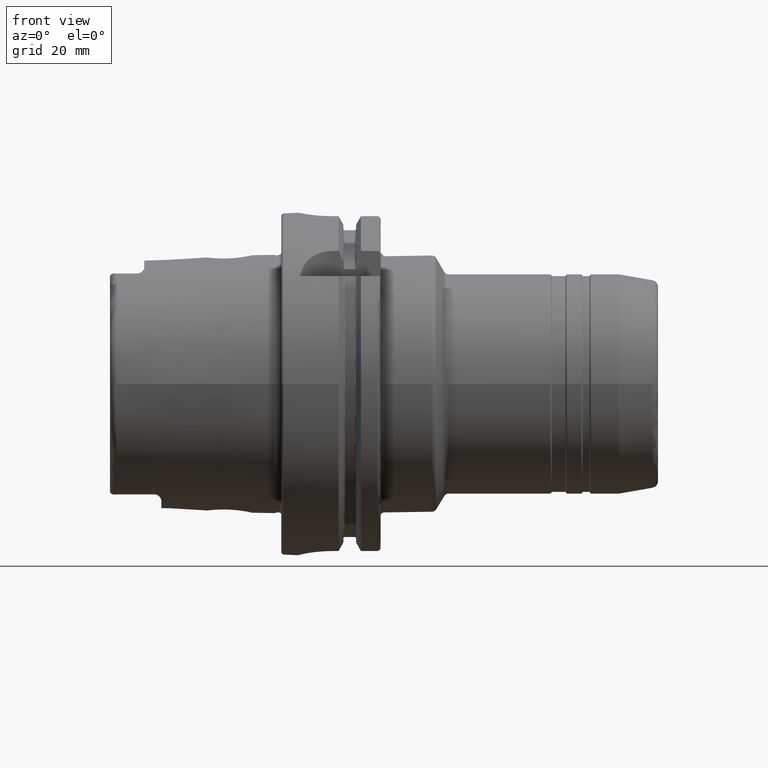
[diagram: clean part render]
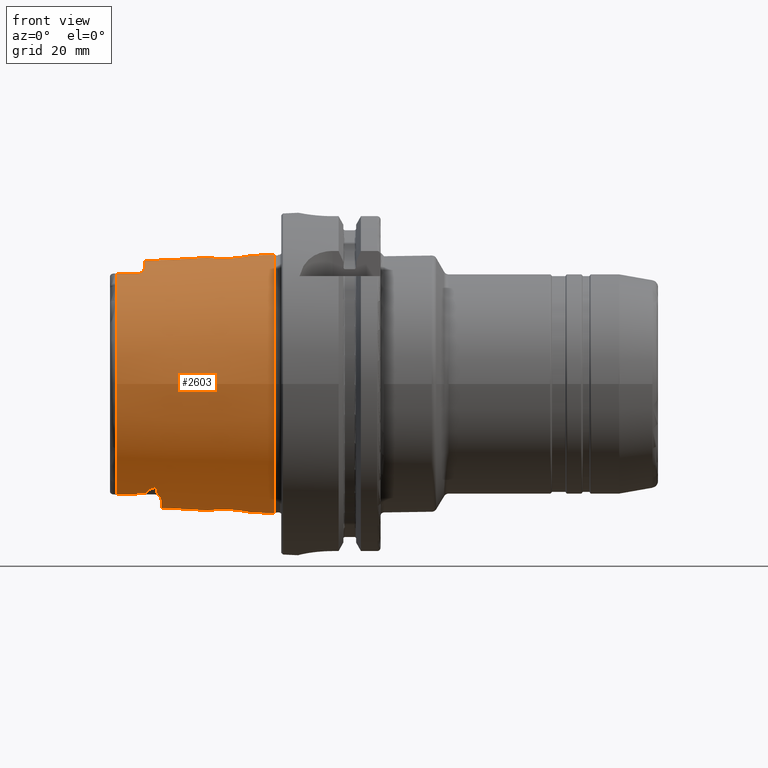
[diagram: same view with one face highlighted and labeled with its STEP entity id]
A machine part, front view. The second image highlights one B-rep face of the part: STEP entity #2603.
In plain terms, the highlighted conical surface has half-angle 2.868 deg.
Its self-contained STEP definition (entity closure, byte-faithful):
#15=(
BOUNDED_CURVE()
B_SPLINE_CURVE(2,(#4581,#4582,#4583),.UNSPECIFIED.,.F.,.F.)
B_SPLINE_CURVE_WITH_KNOTS((3,3),(0.584552731684763,1.01274112792473),
 .UNSPECIFIED.)
CURVE()
GEOMETRIC_REPRESENTATION_ITEM()
RATIONAL_B_SPLINE_CURVE((1.00299496728687,1.00299496728687,1.00138797244737))
REPRESENTATION_ITEM('')
);
#16=(
BOUNDED_CURVE()
B_SPLINE_CURVE(2,(#4650,#4651,#4652),.UNSPECIFIED.,.F.,.F.)
B_SPLINE_CURVE_WITH_KNOTS((3,3),(0.156364335444822,0.584552731684782),
 .UNSPECIFIED.)
CURVE()
GEOMETRIC_REPRESENTATION_ITEM()
RATIONAL_B_SPLINE_CURVE((1.00138797244738,1.00299496728688,1.00299496728688))
REPRESENTATION_ITEM('')
);
#32=B_SPLINE_CURVE_WITH_KNOTS('',3,(#4260,#4261,#4262,#4263,#4264,#4265,
#4266,#4267,#4268,#4269,#4270,#4271,#4272,#4273,#4274,#4275,#4276,#4277),
 .UNSPECIFIED.,.F.,.F.,(4,2,2,2,2,2,2,2,4),(1.82139636410114,1.83165892733975,
1.84192149057836,1.86244661705558,1.93660019990987,2.01075378276416,2.21475865094393,
2.41876351912369,2.7012608097453),.UNSPECIFIED.);
#33=B_SPLINE_CURVE_WITH_KNOTS('',3,(#4302,#4303,#4304,#4305,#4306,#4307,
#4308,#4309,#4310,#4311,#4312,#4313,#4314,#4315,#4316,#4317,#4318,#4319),
 .UNSPECIFIED.,.F.,.F.,(4,2,2,2,2,2,2,2,4),(0.941531918456969,1.22402920907858,
1.42803407725834,1.6320389454381,1.70619252829239,1.78034611114668,1.80087123762391,
1.81113380086252,1.82139636410113),.UNSPECIFIED.);
#36=B_SPLINE_CURVE_WITH_KNOTS('',3,(#4370,#4371,#4372,#4373,#4374,#4375,
#4376,#4377),.UNSPECIFIED.,.F.,.F.,(4,2,2,4),(2.11861414458057,2.2150675983984,
2.41910198133518,2.70152248778045),.UNSPECIFIED.);
#37=B_SPLINE_CURVE_WITH_KNOTS('',3,(#4394,#4395,#4396,#4397,#4398,#4399,
#4400,#4401),.UNSPECIFIED.,.F.,.F.,(4,2,2,4),(0.941785791175404,1.22420629762067,
1.42824068055745,1.52469413437528),.UNSPECIFIED.);
#41=B_SPLINE_CURVE_WITH_KNOTS('',3,(#4548,#4549,#4550,#4551,#4552,#4553,
#4554,#4555,#4556,#4557,#4558,#4559,#4560,#4561,#4562,#4563,#4564,#4565,
#4566,#4567,#4568,#4569,#4570,#4571),.UNSPECIFIED.,.T.,.F.,(4,1,1,1,1,1,
1,1,1,1,1,1,1,1,1,1,1,1,1,1,1,4),(-3.62526060553391,-3.36631341942435,-3.23683982636957,
-3.10736623331478,-2.91315584373261,-2.84841904720522,-2.58947186109565,
-2.41684040368928,-2.2442089462829,-2.07157748887652,-1.89894603147015,
-1.72631457406377,-1.55368311665739,-1.42420952360261,-1.29473593054783,
-1.16526233749304,-1.03578874443826,-0.776841558328696,-0.517894372219131,
-0.388420779164348,-0.258947186109565,0.),.UNSPECIFIED.);
#42=B_SPLINE_CURVE_WITH_KNOTS('',3,(#4585,#4586,#4587,#4588,#4589,#4590,
#4591,#4592,#4593,#4594,#4595,#4596,#4597,#4598,#4599,#4600,#4601,#4602),
 .UNSPECIFIED.,.F.,.F.,(4,2,2,2,2,2,2,2,4),(0.,0.135304265390776,0.202956398086165,
0.270608530781553,0.285985760505599,0.293674375367623,0.301362990229646,
0.309065814809453,0.312240543595572),.UNSPECIFIED.);
#43=B_SPLINE_CURVE_WITH_KNOTS('',3,(#4604,#4605,#4606,#4607,#4608,#4609,
#4610,#4611,#4612,#4613),.UNSPECIFIED.,.F.,.F.,(4,2,2,2,4),(0.355882377061024,
0.475337474766741,0.814409309765131,0.916871755852837,0.96838361555764),
 .UNSPECIFIED.);
#44=B_SPLINE_CURVE_WITH_KNOTS('',3,(#4617,#4618,#4619,#4620,#4621,#4622,
#4623,#4624,#4625,#4626,#4627,#4628,#4629,#4630),.UNSPECIFIED.,.F.,.F.,
(4,2,2,2,2,2,4),(0.968383615555967,0.974150710871355,1.03435732628962,1.16414359525928,
1.35274565404034,1.53834753535542,1.54014497255958),.UNSPECIFIED.);
#45=B_SPLINE_CURVE_WITH_KNOTS('',3,(#4632,#4633,#4634,#4635,#4636,#4637,
#4638,#4639,#4640,#4641,#4642,#4643,#4644,#4645,#4646,#4647,#4648,#4649),
 .UNSPECIFIED.,.F.,.F.,(4,2,2,2,2,2,2,2,4),(0.892798921569994,0.895973650356143,
0.90367647493595,0.911365089797973,0.919053704659997,0.934430934384044,
1.00208306707943,1.06973519977482,1.2050394651656),.UNSPECIFIED.);
#46=B_SPLINE_CURVE_WITH_KNOTS('',3,(#4655,#4656,#4657,#4658,#4659,#4660,
#4661,#4662,#4663,#4664,#4665,#4666,#4667,#4668,#4669,#4670),
 .UNSPECIFIED.,.F.,.F.,(4,2,2,2,2,2,2,4),(0.951925610593878,1.05814966490865,
1.29620724180457,1.38654842311884,1.45440735886397,1.51777192589664,1.5739379106757,
1.5771381713645),.UNSPECIFIED.);
#47=B_SPLINE_CURVE_WITH_KNOTS('',3,(#4673,#4674,#4675,#4676,#4677,#4678,
#4679,#4680,#4681,#4682,#4683,#4684,#4685,#4686),.UNSPECIFIED.,.F.,.F.,
(4,2,2,2,2,2,4),(0.58599893881899,0.631178615969429,0.682399631951053,0.741327952008913,
0.839467365471938,1.06407790070645,1.25314135766173),.UNSPECIFIED.);
#48=B_SPLINE_CURVE_WITH_KNOTS('',3,(#4689,#4690,#4691,#4692,#4693,#4694,
#4695,#4696,#4697,#4698,#4699,#4700,#4701,#4702,#4703,#4704,#4705,#4706,
#4707,#4708,#4709,#4710,#4711,#4712,#4713,#4714),.UNSPECIFIED.,.T.,.F.,
(4,1,1,1,1,1,1,1,1,1,1,1,1,1,1,1,1,1,1,1,1,1,1,4),(-3.62526060553391,-3.36631341942435,
-3.23683982636957,-3.13973463157848,-3.10736623331478,-2.84841904720522,
-2.58947186109565,-2.41684040368928,-2.2442089462829,-2.2010510819313,-2.07157748887652,
-1.89894603147015,-1.72631457406377,-1.55368311665739,-1.42420952360261,
-1.29473593054783,-1.16526233749304,-1.03578874443826,-0.776841558328696,
-0.712104761801304,-0.51789437221913,-0.388420779164348,-0.258947186109565,
0.),.UNSPECIFIED.);
#137=FACE_BOUND('',#620,.T.);
#138=FACE_BOUND('',#621,.T.);
#230=LINE('',#4578,#345);
#345=VECTOR('',#3488,36.7524901081155);
#419=CONICAL_SURFACE('',#2884,36.7524901081155,0.0500583457465976);
#479=FACE_OUTER_BOUND('',#619,.T.);
#619=EDGE_LOOP('',(#1988,#1989,#1990,#1991,#1992,#1993,#1994,#1995,#1996,
#1997,#1998,#1999,#2000,#2001,#2002,#2003,#2004,#2005,#2006,#2007,#2008));
#620=EDGE_LOOP('',(#2009));
#621=EDGE_LOOP('',(#2010));
#833=CIRCLE('',#2885,37.9073016032064);
#834=CIRCLE('',#2886,37.9073016032064);
#835=CIRCLE('',#2887,35.5976786130245);
#836=CIRCLE('',#2888,36.25399498998);
#837=CIRCLE('',#2889,35.5976786130245);
#838=CIRCLE('',#2890,36.003493987976);
#839=CIRCLE('',#2891,35.5976786130245);
#1059=VERTEX_POINT('',#4246);
#1060=VERTEX_POINT('',#4259);
#1070=VERTEX_POINT('',#4299);
#1071=VERTEX_POINT('',#4301);
#1081=VERTEX_POINT('',#4356);
#1082=VERTEX_POINT('',#4369);
#1088=VERTEX_POINT('',#4391);
#1089=VERTEX_POINT('',#4393);
#1092=VERTEX_POINT('',#4516);
#1095=VERTEX_POINT('',#4573);
#1096=VERTEX_POINT('',#4574);
#1097=VERTEX_POINT('',#4577);
#1098=VERTEX_POINT('',#4580);
#1099=VERTEX_POINT('',#4584);
#1100=VERTEX_POINT('',#4603);
#1101=VERTEX_POINT('',#4614);
#1102=VERTEX_POINT('',#4616);
#1103=VERTEX_POINT('',#4631);
#1104=VERTEX_POINT('',#4654);
#1105=VERTEX_POINT('',#4671);
#1106=VERTEX_POINT('',#4688);
#1387=EDGE_CURVE('',#1060,#1059,#32,.T.);
#1399=EDGE_CURVE('',#1071,#1070,#33,.T.);
#1413=EDGE_CURVE('',#1082,#1081,#36,.T.);
#1421=EDGE_CURVE('',#1089,#1088,#37,.T.);
#1429=EDGE_CURVE('',#1092,#1092,#41,.T.);
#1430=EDGE_CURVE('',#1095,#1096,#833,.T.);
#1431=EDGE_CURVE('',#1096,#1095,#834,.T.);
#1432=EDGE_CURVE('',#1096,#1097,#230,.T.);
#1433=EDGE_CURVE('',#1097,#1071,#835,.T.);
#1434=EDGE_CURVE('',#1070,#1098,#15,.T.);
#1435=EDGE_CURVE('',#1099,#1098,#42,.T.);
#1436=EDGE_CURVE('',#1100,#1099,#43,.T.);
#1437=EDGE_CURVE('',#1100,#1101,#836,.T.);
#1438=EDGE_CURVE('',#1102,#1101,#44,.T.);
#1439=EDGE_CURVE('',#1103,#1102,#45,.T.);
#1440=EDGE_CURVE('',#1103,#1060,#16,.T.);
#1441=EDGE_CURVE('',#1059,#1089,#837,.T.);
#1442=EDGE_CURVE('',#1104,#1088,#46,.T.);
#1443=EDGE_CURVE('',#1104,#1105,#838,.T.);
#1444=EDGE_CURVE('',#1082,#1105,#47,.T.);
#1445=EDGE_CURVE('',#1081,#1097,#839,.T.);
#1446=EDGE_CURVE('',#1106,#1106,#48,.T.);
#1988=ORIENTED_EDGE('',*,*,#1430,.F.);
#1989=ORIENTED_EDGE('',*,*,#1431,.F.);
#1990=ORIENTED_EDGE('',*,*,#1432,.T.);
#1991=ORIENTED_EDGE('',*,*,#1433,.T.);
#1992=ORIENTED_EDGE('',*,*,#1399,.T.);
#1993=ORIENTED_EDGE('',*,*,#1434,.T.);
#1994=ORIENTED_EDGE('',*,*,#1435,.F.);
#1995=ORIENTED_EDGE('',*,*,#1436,.F.);
#1996=ORIENTED_EDGE('',*,*,#1437,.T.);
#1997=ORIENTED_EDGE('',*,*,#1438,.F.);
#1998=ORIENTED_EDGE('',*,*,#1439,.F.);
#1999=ORIENTED_EDGE('',*,*,#1440,.T.);
#2000=ORIENTED_EDGE('',*,*,#1387,.T.);
#2001=ORIENTED_EDGE('',*,*,#1441,.T.);
#2002=ORIENTED_EDGE('',*,*,#1421,.T.);
#2003=ORIENTED_EDGE('',*,*,#1442,.F.);
#2004=ORIENTED_EDGE('',*,*,#1443,.T.);
#2005=ORIENTED_EDGE('',*,*,#1444,.F.);
#2006=ORIENTED_EDGE('',*,*,#1413,.T.);
#2007=ORIENTED_EDGE('',*,*,#1445,.T.);
#2008=ORIENTED_EDGE('',*,*,#1432,.F.);
#2009=ORIENTED_EDGE('',*,*,#1446,.F.);
#2010=ORIENTED_EDGE('',*,*,#1429,.F.);
#2603=ADVANCED_FACE('',(#479,#137,#138),#419,.T.);
#2884=AXIS2_PLACEMENT_3D('',#4572,#3482,#3483);
#2885=AXIS2_PLACEMENT_3D('',#4575,#3484,#3485);
#2886=AXIS2_PLACEMENT_3D('',#4576,#3486,#3487);
#2887=AXIS2_PLACEMENT_3D('',#4579,#3489,#3490);
#2888=AXIS2_PLACEMENT_3D('',#4615,#3491,#3492);
#2889=AXIS2_PLACEMENT_3D('',#4653,#3493,#3494);
#2890=AXIS2_PLACEMENT_3D('',#4672,#3495,#3496);
#2891=AXIS2_PLACEMENT_3D('',#4687,#3497,#3498);
#3482=DIRECTION('center_axis',(1.,0.,0.));
#3483=DIRECTION('ref_axis',(0.,1.,0.));
#3484=DIRECTION('center_axis',(1.,0.,0.));
#3485=DIRECTION('ref_axis',(0.,0.,-1.));
#3486=DIRECTION('center_axis',(1.,0.,0.));
#3487=DIRECTION('ref_axis',(0.,0.,-1.));
#3488=DIRECTION('',(-0.998747342623037,0.0500374420151823,6.12781932014143E-18));
#3489=DIRECTION('center_axis',(1.,0.,0.));
#3490=DIRECTION('ref_axis',(0.,0.,-1.));
#3491=DIRECTION('center_axis',(1.,0.,0.));
#3492=DIRECTION('ref_axis',(0.,1.,0.));
#3493=DIRECTION('center_axis',(1.,0.,0.));
#3494=DIRECTION('ref_axis',(0.,0.,-1.));
#3495=DIRECTION('center_axis',(1.,0.,0.));
#3496=DIRECTION('ref_axis',(0.,1.,0.));
#3497=DIRECTION('center_axis',(1.,0.,0.));
#3498=DIRECTION('ref_axis',(0.,0.,-1.));
#4246=CARTESIAN_POINT('',(-48.1000748840304,15.0787152148571,-32.2463497175327));
#4259=CARTESIAN_POINT('',(-39.3086860506441,17.2220784153651,-31.6567015600095));
#4260=CARTESIAN_POINT('Ctrl Pts',(-39.3086860506439,17.2220784153651,-31.6567015600096));
#4261=CARTESIAN_POINT('Ctrl Pts',(-39.3086860506439,17.1920288621925,-31.6730493074242));
#4262=CARTESIAN_POINT('Ctrl Pts',(-39.3149778656361,17.1622985367362,-31.6888083298259));
#4263=CARTESIAN_POINT('Ctrl Pts',(-39.3379356243704,17.1047575471073,-31.7185977246152));
#4264=CARTESIAN_POINT('Ctrl Pts',(-39.3545931085757,17.0769444761517,-31.7326299669));
#4265=CARTESIAN_POINT('Ctrl Pts',(-39.41492287308,16.9977687004959,-31.7717242618145));
#4266=CARTESIAN_POINT('Ctrl Pts',(-39.4690330405114,16.9505386197656,-31.7938497879436));
#4267=CARTESIAN_POINT('Ctrl Pts',(-39.7137538085318,16.7691556019457,-31.8763882092881));
#4268=CARTESIAN_POINT('Ctrl Pts',(-39.9557031082111,16.6668123685081,-31.9161154581445));
#4269=CARTESIAN_POINT('Ctrl Pts',(-40.4538120390228,16.4807891402054,-31.9844991546727));
#4270=CARTESIAN_POINT('Ctrl Pts',(-40.7121103138056,16.4018770942044,-32.0104206666339));
#4271=CARTESIAN_POINT('Ctrl Pts',(-41.6015350915672,16.1516844838416,-32.0879931345296));
#4272=CARTESIAN_POINT('Ctrl Pts',(-42.2774968259687,16.0065639510366,-32.1225120780024));
#4273=CARTESIAN_POINT('Ctrl Pts',(-43.6583569770469,15.7387900082285,-32.1775602969968));
#4274=CARTESIAN_POINT('Ctrl Pts',(-44.3638273319757,15.6187903492069,-32.19660809961));
#4275=CARTESIAN_POINT('Ctrl Pts',(-46.0708874643597,15.3507400024476,-32.2307282620297));
#4276=CARTESIAN_POINT('Ctrl Pts',(-47.0815953489825,15.2100460868363,-32.2412671998384));
#4277=CARTESIAN_POINT('Ctrl Pts',(-48.1000748840303,15.0787152148571,-32.2463497175327));
#4299=CARTESIAN_POINT('',(-39.3086860506441,-17.2220784153651,-31.6567015600095));
#4301=CARTESIAN_POINT('',(-48.1000748840304,-15.0787152148571,-32.2463497175327));
#4302=CARTESIAN_POINT('Ctrl Pts',(-48.1000748840304,-15.0787152148571,-32.2463497175327));
#4303=CARTESIAN_POINT('Ctrl Pts',(-47.0815953489825,-15.2100460868363,-32.2412671998384));
#4304=CARTESIAN_POINT('Ctrl Pts',(-46.0708874643597,-15.3507400024476,-32.2307282620297));
#4305=CARTESIAN_POINT('Ctrl Pts',(-44.3638273319757,-15.6187903492069,-32.19660809961));
#4306=CARTESIAN_POINT('Ctrl Pts',(-43.6583569770469,-15.7387900082285,-32.1775602969968));
#4307=CARTESIAN_POINT('Ctrl Pts',(-42.2774968259687,-16.0065639510366,-32.1225120780024));
#4308=CARTESIAN_POINT('Ctrl Pts',(-41.6015350915672,-16.1516844838416,-32.0879931345296));
#4309=CARTESIAN_POINT('Ctrl Pts',(-40.7121103138057,-16.4018770942044,-32.0104206666339));
#4310=CARTESIAN_POINT('Ctrl Pts',(-40.4538120390228,-16.4807891402054,-31.9844991546726));
#4311=CARTESIAN_POINT('Ctrl Pts',(-39.9557031082111,-16.6668123685081,-31.9161154581445));
#4312=CARTESIAN_POINT('Ctrl Pts',(-39.7137538085319,-16.7691556019457,-31.8763882092881));
#4313=CARTESIAN_POINT('Ctrl Pts',(-39.4690330405114,-16.9505386197656,-31.7938497879436));
#4314=CARTESIAN_POINT('Ctrl Pts',(-39.41492287308,-16.9977687004959,-31.7717242618145));
#4315=CARTESIAN_POINT('Ctrl Pts',(-39.3545931085758,-17.0769444761517,-31.7326299669));
#4316=CARTESIAN_POINT('Ctrl Pts',(-39.3379356243703,-17.1047575471073,-31.7185977246152));
#4317=CARTESIAN_POINT('Ctrl Pts',(-39.314977865636,-17.1622985367361,-31.688808329826));
#4318=CARTESIAN_POINT('Ctrl Pts',(-39.3086860506439,-17.1920288621925,-31.6730493074242));
#4319=CARTESIAN_POINT('Ctrl Pts',(-39.3086860506439,-17.2220784153651,-31.6567015600096));
#4356=CARTESIAN_POINT('',(-48.1000748840304,-15.0787152148571,32.2463497175327));
#4369=CARTESIAN_POINT('',(-42.0000000002536,-16.0736316900317,32.1042809403702));
#4370=CARTESIAN_POINT('Ctrl Pts',(-42.0000000002663,-16.0736316900856,32.1042809403568));
#4371=CARTESIAN_POINT('Ctrl Pts',(-42.3189705746531,-16.0023328339441,32.122106579912));
#4372=CARTESIAN_POINT('Ctrl Pts',(-42.6420078541405,-15.9358744877955,32.1370456038288));
#4373=CARTESIAN_POINT('Ctrl Pts',(-43.6589764923173,-15.7386786248219,32.177580265585));
#4374=CARTESIAN_POINT('Ctrl Pts',(-44.364550975751,-15.6186692080222,32.1966265955614));
#4375=CARTESIAN_POINT('Ctrl Pts',(-46.0714496280263,-15.3506621075505,32.2307339275334));
#4376=CARTESIAN_POINT('Ctrl Pts',(-47.0818768820559,-15.210009783717,32.2412686047727));
#4377=CARTESIAN_POINT('Ctrl Pts',(-48.1000748840304,-15.0787152148571,32.2463497175327));
#4391=CARTESIAN_POINT('',(-42.0000000002536,16.0736316900317,32.1042809403702));
#4393=CARTESIAN_POINT('',(-48.1000748840304,15.0787152148571,32.2463497175327));
#4394=CARTESIAN_POINT('Ctrl Pts',(-48.1000748840304,15.0787152148571,32.2463497175327));
#4395=CARTESIAN_POINT('Ctrl Pts',(-47.0818768820559,15.210009783717,32.2412686047727));
#4396=CARTESIAN_POINT('Ctrl Pts',(-46.0714496280263,15.3506621075505,32.2307339275334));
#4397=CARTESIAN_POINT('Ctrl Pts',(-44.364550975751,15.6186692080222,32.1966265955614));
#4398=CARTESIAN_POINT('Ctrl Pts',(-43.6589764923172,15.7386786248219,32.177580265585));
#4399=CARTESIAN_POINT('Ctrl Pts',(-42.6420078541405,15.9358744877955,32.1370456038288));
#4400=CARTESIAN_POINT('Ctrl Pts',(-42.3189705746531,16.0023328339441,32.122106579912));
#4401=CARTESIAN_POINT('Ctrl Pts',(-42.0000000002663,16.0736316900856,32.1042809403568));
#4516=CARTESIAN_POINT('',(-15.0482435047104,6.49272743621066,-36.6834276129017));
#4548=CARTESIAN_POINT('Ctrl Pts',(-15.0482435047104,6.49272743621066,-36.6834276129017));
#4549=CARTESIAN_POINT('Ctrl Pts',(-14.1135545674523,6.50026995600844,-36.7296485677624));
#4550=CARTESIAN_POINT('Ctrl Pts',(-12.6125862949105,6.18830817118321,-36.8646717861154));
#4551=CARTESIAN_POINT('Ctrl Pts',(-10.9355263213122,5.13385394303874,-37.1097128714846));
#4552=CARTESIAN_POINT('Ctrl Pts',(-9.77420691042437,3.99872482551772,-37.3124990416381));
#4553=CARTESIAN_POINT('Ctrl Pts',(-9.01389114298067,2.6908920183028,-37.4692616165149));
#4554=CARTESIAN_POINT('Ctrl Pts',(-8.45620136187699,0.783918842134784,-37.5909415665212));
#4555=CARTESIAN_POINT('Ctrl Pts',(-8.42050281053454,-1.03174264349175,-37.5987683444945));
#4556=CARTESIAN_POINT('Ctrl Pts',(-9.26297266549275,-3.26583075674904,-37.4147206754643));
#4557=CARTESIAN_POINT('Ctrl Pts',(-10.458492519938,-4.76885929810559,-37.1861403632723));
#4558=CARTESIAN_POINT('Ctrl Pts',(-12.0228887870965,-5.89032438834427,-36.9420532655873));
#4559=CARTESIAN_POINT('Ctrl Pts',(-13.9680532212746,-6.50710199210242,-36.7359370633354));
#4560=CARTESIAN_POINT('Ctrl Pts',(-15.8440764393336,-6.52958618717481,-36.6362816769022));
#4561=CARTESIAN_POINT('Ctrl Pts',(-17.6300730630046,-6.03011079587191,-36.6335589552162));
#4562=CARTESIAN_POINT('Ctrl Pts',(-19.0454046322519,-5.14759442471502,-36.6975665887127));
#4563=CARTESIAN_POINT('Ctrl Pts',(-20.0509032742539,-4.16499804110167,-36.7727593560743));
#4564=CARTESIAN_POINT('Ctrl Pts',(-20.8701749498926,-2.92631384107143,-36.8543936474532));
#4565=CARTESIAN_POINT('Ctrl Pts',(-21.5409373453018,-1.02232892624704,-36.9349482957206));
#4566=CARTESIAN_POINT('Ctrl Pts',(-21.5837880668158,1.35571299008144,-36.9401169281877));
#4567=CARTESIAN_POINT('Ctrl Pts',(-20.4818838939864,3.73437449889082,-36.8075944881395));
#4568=CARTESIAN_POINT('Ctrl Pts',(-19.1568247034836,5.05418616406115,-36.7047525113947));
#4569=CARTESIAN_POINT('Ctrl Pts',(-17.4931824437517,6.14967739850973,-36.6242770442053));
#4570=CARTESIAN_POINT('Ctrl Pts',(-15.9829324419684,6.48518491641288,-36.637206658041));
#4571=CARTESIAN_POINT('Ctrl Pts',(-15.0482435047104,6.49272743621066,-36.6834276129017));
#4572=CARTESIAN_POINT('Origin',(-25.0500374420152,0.,0.));
#4573=CARTESIAN_POINT('',(-2.,37.9073016032064,0.));
#4574=CARTESIAN_POINT('',(-2.,-37.9073016032064,-4.64230555726801E-15));
#4575=CARTESIAN_POINT('Origin',(-2.,0.,0.));
#4576=CARTESIAN_POINT('Origin',(-2.,0.,0.));
#4577=CARTESIAN_POINT('',(-48.1000748840304,-35.5976786130245,-4.35945831705167E-15));
#4578=CARTESIAN_POINT('',(-25.0500374420152,-36.7524901081155,-4.50088193715984E-15));
#4579=CARTESIAN_POINT('Origin',(-48.1000748840304,0.,0.));
#4580=CARTESIAN_POINT('',(-36.9999999999998,-19.7604190654811,-30.275777472314));
#4581=CARTESIAN_POINT('Ctrl Pts',(-39.3086860506441,-17.2220784153651,-31.6567015600095));
#4582=CARTESIAN_POINT('Ctrl Pts',(-39.3086860506441,-18.4892152804039,-30.9673457719047));
#4583=CARTESIAN_POINT('Ctrl Pts',(-37.0000000000089,-19.760419065476,-30.2757774723168));
#4584=CARTESIAN_POINT('',(-36.2297931655992,-17.2957936700592,-31.7922009905656));
#4585=CARTESIAN_POINT('Ctrl Pts',(-36.2297931655991,-17.2957936700592,-31.7922009905656));
#4586=CARTESIAN_POINT('Ctrl Pts',(-36.2297931655991,-17.6919746847632,-31.5766680965597));
#4587=CARTESIAN_POINT('Ctrl Pts',(-36.2521990165892,-18.1190045646745,-31.3326752508756));
#4588=CARTESIAN_POINT('Ctrl Pts',(-36.3408092415002,-18.7314387685111,-30.9624943289716));
#4589=CARTESIAN_POINT('Ctrl Pts',(-36.3790895444364,-18.9299841471613,-30.8391450528654));
#4590=CARTESIAN_POINT('Ctrl Pts',(-36.4852329136377,-19.306843178886,-30.5983353090591));
#4591=CARTESIAN_POINT('Ctrl Pts',(-36.5439103950281,-19.4871821233798,-30.4800880558704));
#4592=CARTESIAN_POINT('Ctrl Pts',(-36.6912326687357,-19.6798076445983,-30.3467082687203));
#4593=CARTESIAN_POINT('Ctrl Pts',(-36.7249701183787,-19.7165113518141,-30.3208469816645));
#4594=CARTESIAN_POINT('Ctrl Pts',(-36.7841864173308,-19.7579943063986,-30.290274608581));
#4595=CARTESIAN_POINT('Ctrl Pts',(-36.8053838947294,-19.7694984454156,-30.2814962901986));
#4596=CARTESIAN_POINT('Ctrl Pts',(-36.8506143317697,-19.7854180725537,-30.2683898183443));
#4597=CARTESIAN_POINT('Ctrl Pts',(-36.8746547533364,-19.7898201350064,-30.264071114845));
#4598=CARTESIAN_POINT('Ctrl Pts',(-36.925895284142,-19.7884151696532,-30.2619225368856));
#4599=CARTESIAN_POINT('Ctrl Pts',(-36.9499861453108,-19.7826799175172,-30.2642318432453));
#4600=CARTESIAN_POINT('Ctrl Pts',(-36.9820207117301,-19.7696848900689,-30.2708039920388));
#4601=CARTESIAN_POINT('Ctrl Pts',(-36.9911306097576,-19.7653027102035,-30.273120641115));
#4602=CARTESIAN_POINT('Ctrl Pts',(-36.9999999999997,-19.760419065481,-30.275777472314));
#4603=CARTESIAN_POINT('',(-35.,-12.7918651267415,-33.9222690767105));
#4604=CARTESIAN_POINT('Ctrl Pts',(-35.,-12.7918651267426,-33.9222690767101));
#4605=CARTESIAN_POINT('Ctrl Pts',(-35.0000000000001,-13.2716695445343,-33.7413379784475));
#4606=CARTESIAN_POINT('Ctrl Pts',(-35.0765460606978,-13.7105867284853,-33.5594062083601));
#4607=CARTESIAN_POINT('Ctrl Pts',(-35.3935172162449,-15.0275145848391,-32.9882321567447));
#4608=CARTESIAN_POINT('Ctrl Pts',(-35.8272793338039,-15.8448282797016,-32.5701705725068));
#4609=CARTESIAN_POINT('Ctrl Pts',(-36.1303536788273,-16.6786905371956,-32.126600714556));
#4610=CARTESIAN_POINT('Ctrl Pts',(-36.1820664850684,-16.8557754437463,-32.030984619072));
#4611=CARTESIAN_POINT('Ctrl Pts',(-36.2225122577352,-17.1184652869411,-31.8886039957027));
#4612=CARTESIAN_POINT('Ctrl Pts',(-36.2297931655992,-17.2061020907562,-31.8409955691488));
#4613=CARTESIAN_POINT('Ctrl Pts',(-36.2297931655992,-17.2957936700592,-31.7922009905656));
#4614=CARTESIAN_POINT('',(-35.,12.7918651267415,-33.9222690767105));
#4615=CARTESIAN_POINT('Origin',(-35.,0.,0.));
#4616=CARTESIAN_POINT('',(-36.2297931655992,17.2957936700592,-31.7922009905656));
#4617=CARTESIAN_POINT('Ctrl Pts',(-36.2297931655992,17.2957936700592,-31.7922009905656));
#4618=CARTESIAN_POINT('Ctrl Pts',(-36.2297931655992,17.2857521011896,-31.7976638681859));
#4619=CARTESIAN_POINT('Ctrl Pts',(-36.2297018732724,17.2756840159163,-31.8031402140989));
#4620=CARTESIAN_POINT('Ctrl Pts',(-36.2275970792751,17.1601682556352,-31.8659616470356));
#4621=CARTESIAN_POINT('Ctrl Pts',(-36.2156218316917,17.0562072347613,-31.922407942335));
#4622=CARTESIAN_POINT('Ctrl Pts',(-36.1505093185127,16.7229293390599,-32.1027521967692));
#4623=CARTESIAN_POINT('Ctrl Pts',(-36.065134056668,16.4848506381079,-32.2308215310631));
#4624=CARTESIAN_POINT('Ctrl Pts',(-35.7984585549742,15.8312737268516,-32.5732245714574));
#4625=CARTESIAN_POINT('Ctrl Pts',(-35.5744019673667,15.3507133777923,-32.8174718312589));
#4626=CARTESIAN_POINT('Ctrl Pts',(-35.1938633470317,14.2651773499191,-33.3242510091415));
#4627=CARTESIAN_POINT('Ctrl Pts',(-35.0037140190077,13.5715015976815,-33.6275053772421));
#4628=CARTESIAN_POINT('Ctrl Pts',(-35.0000176891147,12.8065033311274,-33.9167454576574));
#4629=CARTESIAN_POINT('Ctrl Pts',(-35.,12.7991780985434,-33.9195114030197));
#4630=CARTESIAN_POINT('Ctrl Pts',(-35.,12.7918651267414,-33.9222690767105));
#4631=CARTESIAN_POINT('',(-37.,19.7604190654809,-30.2757774723141));
#4632=CARTESIAN_POINT('Ctrl Pts',(-37.,19.760419065481,-30.2757774723141));
#4633=CARTESIAN_POINT('Ctrl Pts',(-36.9911306097578,19.7653027102035,-30.273120641115));
#4634=CARTESIAN_POINT('Ctrl Pts',(-36.9820207117302,19.769684890069,-30.2708039920388));
#4635=CARTESIAN_POINT('Ctrl Pts',(-36.9499861453108,19.7826799175173,-30.2642318432453));
#4636=CARTESIAN_POINT('Ctrl Pts',(-36.925895284142,19.7884151696532,-30.2619225368856));
#4637=CARTESIAN_POINT('Ctrl Pts',(-36.8746547533364,19.7898201350064,-30.264071114845));
#4638=CARTESIAN_POINT('Ctrl Pts',(-36.8506143317697,19.7854180725537,-30.2683898183443));
#4639=CARTESIAN_POINT('Ctrl Pts',(-36.8053838947294,19.7694984454156,-30.2814962901986));
#4640=CARTESIAN_POINT('Ctrl Pts',(-36.7841864173308,19.7579943063986,-30.290274608581));
#4641=CARTESIAN_POINT('Ctrl Pts',(-36.7249701183787,19.7165113518141,-30.3208469816645));
#4642=CARTESIAN_POINT('Ctrl Pts',(-36.6912326687357,19.6798076445984,-30.3467082687203));
#4643=CARTESIAN_POINT('Ctrl Pts',(-36.5439103950281,19.4871821233798,-30.4800880558704));
#4644=CARTESIAN_POINT('Ctrl Pts',(-36.4852329136378,19.306843178886,-30.5983353090591));
#4645=CARTESIAN_POINT('Ctrl Pts',(-36.3790895444365,18.9299841471613,-30.8391450528654));
#4646=CARTESIAN_POINT('Ctrl Pts',(-36.3408092415002,18.7314387685111,-30.9624943289715));
#4647=CARTESIAN_POINT('Ctrl Pts',(-36.2521990165892,18.1190045646745,-31.3326752508756));
#4648=CARTESIAN_POINT('Ctrl Pts',(-36.2297931655991,17.6919746847632,-31.5766680965597));
#4649=CARTESIAN_POINT('Ctrl Pts',(-36.2297931655991,17.2957936700592,-31.7922009905656));
#4650=CARTESIAN_POINT('Ctrl Pts',(-37.0000000000092,19.7604190654759,-30.2757774723168));
#4651=CARTESIAN_POINT('Ctrl Pts',(-39.3086860506441,18.4892152804039,-30.9673457719048));
#4652=CARTESIAN_POINT('Ctrl Pts',(-39.3086860506441,17.2220784153651,-31.6567015600095));
#4653=CARTESIAN_POINT('Origin',(-48.1000748840304,0.,0.));
#4654=CARTESIAN_POINT('',(-40.,12.4227760464511,33.7923987701664));
#4655=CARTESIAN_POINT('Ctrl Pts',(-40.,12.4227760464511,33.7923987701664));
#4656=CARTESIAN_POINT('Ctrl Pts',(-40.,12.7419527823378,33.6750628824087));
#4657=CARTESIAN_POINT('Ctrl Pts',(-40.0375731646412,13.0776475996579,33.5444889562855));
#4658=CARTESIAN_POINT('Ctrl Pts',(-40.2952030220137,14.204338882917,33.0777059010272));
#4659=CARTESIAN_POINT('Ctrl Pts',(-40.646555500088,14.8752966004784,32.7549341580208));
#4660=CARTESIAN_POINT('Ctrl Pts',(-41.0603895118526,15.4779630836856,32.44836211168));
#4661=CARTESIAN_POINT('Ctrl Pts',(-41.1980205087673,15.6556849566356,32.3552047227428));
#4662=CARTESIAN_POINT('Ctrl Pts',(-41.4545269599315,15.9060673278644,32.2183420240425));
#4663=CARTESIAN_POINT('Ctrl Pts',(-41.5436022580114,15.9688653327575,32.1820824055277));
#4664=CARTESIAN_POINT('Ctrl Pts',(-41.6853529076114,16.0463920787515,32.1355548450209));
#4665=CARTESIAN_POINT('Ctrl Pts',(-41.7512744555391,16.0697812119561,32.1201454390566));
#4666=CARTESIAN_POINT('Ctrl Pts',(-41.8741794719293,16.0889724726195,32.1036488638476));
#4667=CARTESIAN_POINT('Ctrl Pts',(-41.9317167825714,16.0876211043841,32.1011018387604));
#4668=CARTESIAN_POINT('Ctrl Pts',(-41.9933777503431,16.0750788518127,32.1039274012118));
#4669=CARTESIAN_POINT('Ctrl Pts',(-41.9966932024657,16.0743708520026,32.1040961402821));
#4670=CARTESIAN_POINT('Ctrl Pts',(-42.0000000002664,16.0736316900856,32.1042809403568));
#4671=CARTESIAN_POINT('',(-40.,-12.4227760464511,33.7923987701664));
#4672=CARTESIAN_POINT('Origin',(-40.,0.,0.));
#4673=CARTESIAN_POINT('Ctrl Pts',(-42.0000000002664,-16.0736316900856,32.1042809403568));
#4674=CARTESIAN_POINT('Ctrl Pts',(-41.9532981877176,-16.0840708530993,32.1016710140877));
#4675=CARTESIAN_POINT('Ctrl Pts',(-41.9050462288341,-16.0882872456028,32.1022609254704));
#4676=CARTESIAN_POINT('Ctrl Pts',(-41.7973675228035,-16.0800004321419,32.1124461122313));
#4677=CARTESIAN_POINT('Ctrl Pts',(-41.7413360757048,-16.0653619433608,32.1229212478587));
#4678=CARTESIAN_POINT('Ctrl Pts',(-41.6239822044533,-16.0165128109429,32.1538775766807));
#4679=CARTESIAN_POINT('Ctrl Pts',(-41.5522675623989,-15.9755629601737,32.1783316856742));
#4680=CARTESIAN_POINT('Ctrl Pts',(-41.3277927134023,-15.7966592313301,32.2792175155224));
#4681=CARTESIAN_POINT('Ctrl Pts',(-41.1901764677993,-15.6399550711414,32.3632616530429));
#4682=CARTESIAN_POINT('Ctrl Pts',(-40.8198003078492,-15.1566985557665,32.6146257404162));
#4683=CARTESIAN_POINT('Ctrl Pts',(-40.5143326017071,-14.6456107207803,32.868966839454));
#4684=CARTESIAN_POINT('Ctrl Pts',(-40.1039820766269,-13.4955400218785,33.3777943404952));
#4685=CARTESIAN_POINT('Ctrl Pts',(-40.,-12.9546784960247,33.5968605648276));
#4686=CARTESIAN_POINT('Ctrl Pts',(-40.,-12.422776046451,33.7923987701664));
#4687=CARTESIAN_POINT('Origin',(-48.1000748840304,0.,0.));
#4688=CARTESIAN_POINT('',(-15.0482435047104,6.49272743621066,36.6834276129017));
#4689=CARTESIAN_POINT('Ctrl Pts',(-15.0482435047104,6.49272743621066,36.6834276129017));
#4690=CARTESIAN_POINT('Ctrl Pts',(-15.9829324419684,6.48518491641288,36.637206658041));
#4691=CARTESIAN_POINT('Ctrl Pts',(-17.4866023410943,6.1492077495217,36.6235790675961));
#4692=CARTESIAN_POINT('Ctrl Pts',(-19.0577948349359,5.12534251951808,36.7000400389206));
#4693=CARTESIAN_POINT('Ctrl Pts',(-19.7285341214944,4.47535633862254,36.7489785200356));
#4694=CARTESIAN_POINT('Ctrl Pts',(-20.6550188198957,3.37673173572321,36.8280268143641));
#4695=CARTESIAN_POINT('Ctrl Pts',(-21.5767265446075,1.36398348816804,36.93957893606));
#4696=CARTESIAN_POINT('Ctrl Pts',(-21.546724865986,-1.1898750248608,36.9354628300056));
#4697=CARTESIAN_POINT('Ctrl Pts',(-20.6614810285301,-3.39819593521009,36.8298067136365));
#4698=CARTESIAN_POINT('Ctrl Pts',(-19.7299275837876,-4.50878451478095,36.7460018871591));
#4699=CARTESIAN_POINT('Ctrl Pts',(-18.7617072817101,-5.32584036574977,36.6848153804274));
#4700=CARTESIAN_POINT('Ctrl Pts',(-17.6257926470054,-6.02949389457767,36.6338999971975));
#4701=CARTESIAN_POINT('Ctrl Pts',(-15.8516352881468,-6.52976180497178,36.6358727150011));
#4702=CARTESIAN_POINT('Ctrl Pts',(-13.9603354002875,-6.5058868548532,36.736639679508));
#4703=CARTESIAN_POINT('Ctrl Pts',(-12.1928929992637,-5.95072068791055,36.9230706723905));
#4704=CARTESIAN_POINT('Ctrl Pts',(-10.8263000201084,-5.04719821437838,37.1274642889699));
#4705=CARTESIAN_POINT('Ctrl Pts',(-9.85299902234014,-4.05128459645323,37.299862620781));
#4706=CARTESIAN_POINT('Ctrl Pts',(-9.06190637750763,-2.78872073232155,37.4584370687624));
#4707=CARTESIAN_POINT('Ctrl Pts',(-8.43391629856387,-0.884062695565897,
37.5960041726761));
#4708=CARTESIAN_POINT('Ctrl Pts',(-8.45410064609006,0.788619655243524,37.5913278334431));
#4709=CARTESIAN_POINT('Ctrl Pts',(-9.01441929574745,2.69257857020313,37.4691269556054));
#4710=CARTESIAN_POINT('Ctrl Pts',(-9.77284187476569,3.99984728471339,37.3126901456211));
#4711=CARTESIAN_POINT('Ctrl Pts',(-10.9362389650119,5.13567294871907,37.1096157994659));
#4712=CARTESIAN_POINT('Ctrl Pts',(-12.6128004271058,6.18896987535432,36.8645846653909));
#4713=CARTESIAN_POINT('Ctrl Pts',(-14.1135545674523,6.50026995600844,36.7296485677624));
#4714=CARTESIAN_POINT('Ctrl Pts',(-15.0482435047104,6.49272743621066,36.6834276129017));